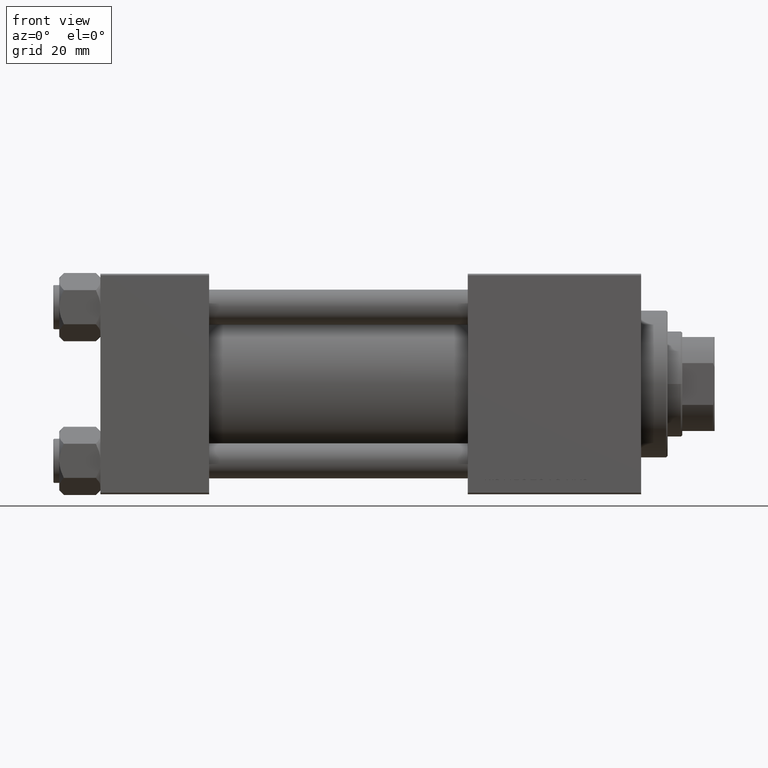
[diagram: clean part render]
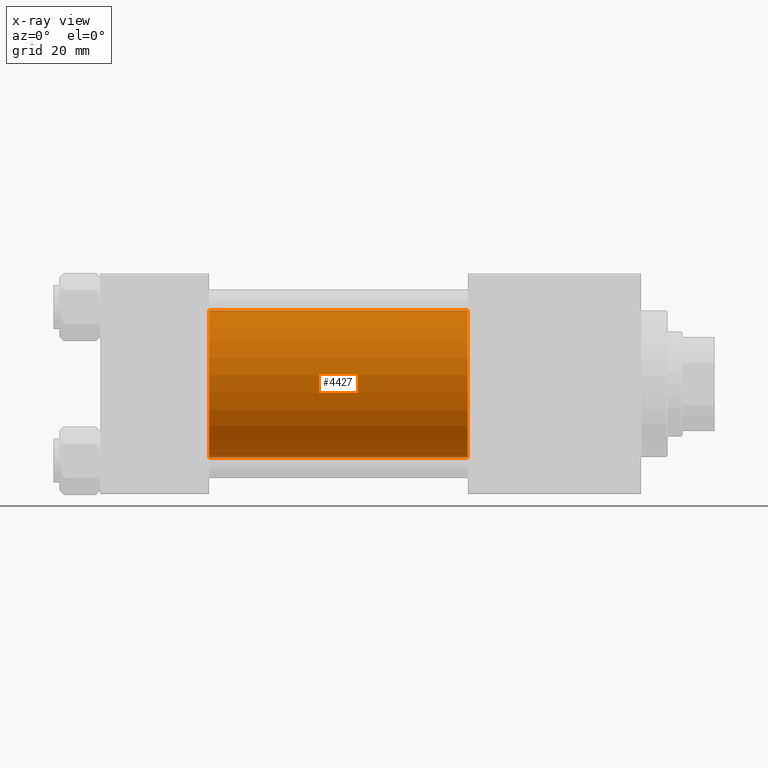
[diagram: x-ray — body ghosted, one internal face saturated and labeled with its STEP entity id]
A machine part, front view, then the same camera in x-ray: the body is ghosted and one INTERNAL B-rep face — a face not visible from any outside direction — is saturated and labeled: STEP entity #4427.
In plain terms, the highlighted cylindrical surface (partial cylindrical patch) has radius 25 mm, axis along (-1, -0, -0).
Its self-contained STEP definition (entity closure, byte-faithful):
#3584 = DIRECTION ( 'NONE',  ( -1.000000000000000000, -0.000000000000000000, -0.000000000000000000 ) ) ;
#4380 = CARTESIAN_POINT ( 'NONE',  ( 125.0000000000000000, -2.602085213965210642E-15, 25.00000000000000000 ) ) ;
#4427 = ADVANCED_FACE ( 'NONE', ( #15110 ), #43145, .F. ) ;
#5000 = DIRECTION ( 'NONE',  ( 1.000000000000000000, 0.000000000000000000, 0.000000000000000000 ) ) ;
#5612 = AXIS2_PLACEMENT_3D ( 'NONE', #39295, #42131, #7489 ) ;
#7489 = DIRECTION ( 'NONE',  ( 0.000000000000000000, 0.000000000000000000, 1.000000000000000000 ) ) ;
#7557 = ORIENTED_EDGE ( 'NONE', *, *, #31996, .F. ) ;
#8655 = CARTESIAN_POINT ( 'NONE',  ( 125.0000000000000000, -2.602085213965210642E-15, 25.00000000000000000 ) ) ;
#12885 = DIRECTION ( 'NONE',  ( 0.000000000000000000, 0.000000000000000000, -1.000000000000000000 ) ) ;
#15110 = FACE_OUTER_BOUND ( 'NONE', #23284, .T. ) ;
#15251 = CARTESIAN_POINT ( 'NONE',  ( 37.00000000000000000, -2.602085213965210642E-15, 25.00000000000000000 ) ) ;
#16787 = ORIENTED_EDGE ( 'NONE', *, *, #33599, .T. ) ;
#22166 = AXIS2_PLACEMENT_3D ( 'NONE', #45673, #41845, #22452 ) ;
#22452 = DIRECTION ( 'NONE',  ( 0.000000000000000000, 0.000000000000000000, -1.000000000000000000 ) ) ;
#23284 = EDGE_LOOP ( 'NONE', ( #26375, #16787, #7557, #38616 ) ) ;
#23781 = CIRCLE ( 'NONE', #22166, 25.00000000000000000 ) ;
#23790 = EDGE_CURVE ( 'NONE', #42767, #29427, #42582, .T. ) ;
#23856 = VECTOR ( 'NONE', #3584, 1000.000000000000000 ) ;
#24667 = AXIS2_PLACEMENT_3D ( 'NONE', #32227, #5000, #12885 ) ;
#25603 = VECTOR ( 'NONE', #43116, 1000.000000000000000 ) ;
#26207 = CARTESIAN_POINT ( 'NONE',  ( 37.00000000000000000, 4.595317839031724996E-16, -25.00000000000000000 ) ) ;
#26375 = ORIENTED_EDGE ( 'NONE', *, *, #23790, .T. ) ;
#27562 = EDGE_CURVE ( 'NONE', #42767, #45340, #47453, .T. ) ;
#29427 = VERTEX_POINT ( 'NONE', #45189 ) ;
#31341 = VERTEX_POINT ( 'NONE', #26207 ) ;
#31996 = EDGE_CURVE ( 'NONE', #45340, #31341, #23781, .T. ) ;
#32227 = CARTESIAN_POINT ( 'NONE',  ( 125.0000000000000000, -2.602085213965210642E-15, 0.000000000000000000 ) ) ;
#33599 = EDGE_CURVE ( 'NONE', #29427, #31341, #34404, .T. ) ;
#34404 = LINE ( 'NONE', #49985, #23856 ) ;
#38616 = ORIENTED_EDGE ( 'NONE', *, *, #27562, .F. ) ;
#39295 = CARTESIAN_POINT ( 'NONE',  ( 125.0000000000000000, -2.602085213965210642E-15, 0.000000000000000000 ) ) ;
#41845 = DIRECTION ( 'NONE',  ( 1.000000000000000000, 0.000000000000000000, 0.000000000000000000 ) ) ;
#42131 = DIRECTION ( 'NONE',  ( -1.000000000000000000, -0.000000000000000000, -0.000000000000000000 ) ) ;
#42582 = CIRCLE ( 'NONE', #24667, 25.00000000000000000 ) ;
#42767 = VERTEX_POINT ( 'NONE', #8655 ) ;
#43116 = DIRECTION ( 'NONE',  ( -1.000000000000000000, -0.000000000000000000, -0.000000000000000000 ) ) ;
#43145 = CYLINDRICAL_SURFACE ( 'NONE', #5612, 25.00000000000000000 ) ;
#45189 = CARTESIAN_POINT ( 'NONE',  ( 125.0000000000000000, 4.595317839031724996E-16, -25.00000000000000000 ) ) ;
#45340 = VERTEX_POINT ( 'NONE', #15251 ) ;
#45673 = CARTESIAN_POINT ( 'NONE',  ( 37.00000000000000000, -2.602085213965210642E-15, 0.000000000000000000 ) ) ;
#47453 = LINE ( 'NONE', #4380, #25603 ) ;
#49985 = CARTESIAN_POINT ( 'NONE',  ( 125.0000000000000000, 4.595317839031724996E-16, -25.00000000000000000 ) ) ;